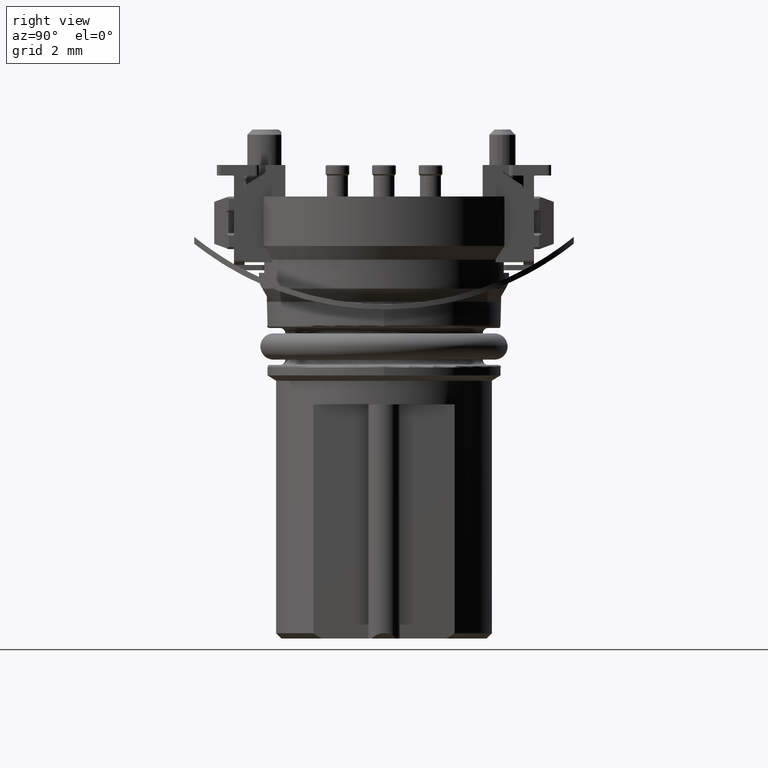
[diagram: clean part render]
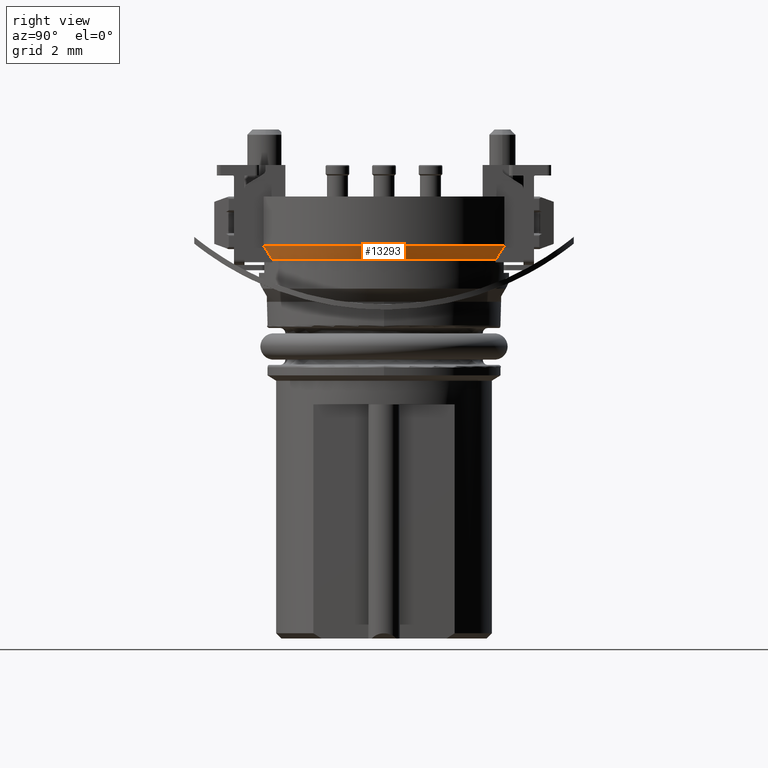
[diagram: same view with one face highlighted and labeled with its STEP entity id]
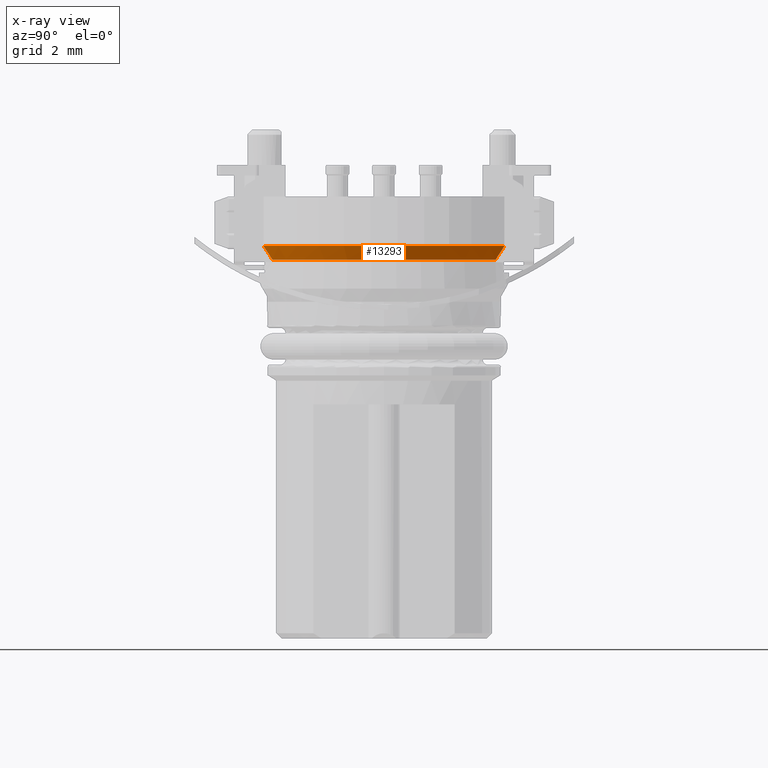
[diagram: x-ray of the same camera — body ghosted, the highlighted face saturated]
A machine part, right view. The second image highlights one B-rep face of the part: STEP entity #13293.
The next image is the same camera in x-ray: the body ghosted, the highlighted face saturated — about 0% of this face is hidden behind the body in this view.
In plain terms, the highlighted conical surface has half-angle 30 deg.
Its self-contained STEP definition (entity closure, byte-faithful):
#351=CARTESIAN_POINT('',(2.25E0,-4.576843890718E0,-3.080384757729E0));
#352=CARTESIAN_POINT('',(2.25E0,-4.538403500501E0,-3.140135642209E0));
#353=CARTESIAN_POINT('',(2.25E0,-4.462198632743E0,-3.258293690259E0));
#354=CARTESIAN_POINT('',(2.25E0,-4.349939330021E0,-3.431461919366E0));
#355=CARTESIAN_POINT('',(2.25E0,-4.276416809195E0,-3.544265188124E0));
#356=CARTESIAN_POINT('',(2.25E0,-4.239988207531E0,-3.6E0));
#402=CARTESIAN_POINT('',(2.25E0,4.239988207531E0,-3.6E0));
#403=CARTESIAN_POINT('',(2.25E0,4.276405623897E0,-3.544282301337E0));
#404=CARTESIAN_POINT('',(2.25E0,4.349913309737E0,-3.431501920412E0));
#405=CARTESIAN_POINT('',(2.25E0,4.462172006315E0,-3.258334901385E0));
#406=CARTESIAN_POINT('',(2.25E0,4.538392119917E0,-3.140153331936E0));
#407=CARTESIAN_POINT('',(2.25E0,4.576843890718E0,-3.080384757729E0));
#2244=CARTESIAN_POINT('',(0.E0,0.E0,-3.6E0));
#2245=DIRECTION('',(0.E0,0.E0,-1.E0));
#2246=DIRECTION('',(4.6875E-1,8.833308765689E-1,0.E0));
#2247=AXIS2_PLACEMENT_3D('',#2244,#2245,#2246);
#2320=CARTESIAN_POINT('',(0.E0,0.E0,-3.080384757729E0));
#2321=DIRECTION('',(0.E0,0.E0,1.E0));
#2322=DIRECTION('',(4.411764705882E-1,-8.974203707290E-1,0.E0));
#2323=AXIS2_PLACEMENT_3D('',#2320,#2321,#2322);
#9961=CARTESIAN_POINT('',(2.25E0,-4.576843890718E0,-3.080384757729E0));
#9963=VERTEX_POINT('',#9961);
#9965=VERTEX_POINT('',#356);
#9966=CARTESIAN_POINT('',(2.25E0,4.576843890718E0,-3.080384757729E0));
#9968=VERTEX_POINT('',#9966);
#9970=VERTEX_POINT('',#402);
#13282=CARTESIAN_POINT('',(0.E0,0.E0,-3.340192378865E0));
#13283=DIRECTION('',(0.E0,0.E0,1.E0));
#13284=DIRECTION('',(-4.226182617407E-1,9.063077870367E-1,0.E0));
#13285=AXIS2_PLACEMENT_3D('',#13282,#13283,#13284);
#13286=CONICAL_SURFACE('',#13285,4.95E0,3.E1);
#13287=ORIENTED_EDGE('',*,*,#11468,.F.);
#13288=ORIENTED_EDGE('',*,*,#11504,.T.);
#13289=ORIENTED_EDGE('',*,*,#11524,.F.);
#13290=ORIENTED_EDGE('',*,*,#13254,.T.);
#13291=EDGE_LOOP('',(#13287,#13288,#13289,#13290));
#13292=FACE_OUTER_BOUND('',#13291,.F.);
#357=B_SPLINE_CURVE_WITH_KNOTS('',3,(#351,#352,#353,#354,#355,#356),
.UNSPECIFIED.,.F.,.F.,(4,1,1,4),(0.E0,3.333333333333E-1,6.666666666667E-1,1.E0),
.UNSPECIFIED.);
#408=B_SPLINE_CURVE_WITH_KNOTS('',3,(#402,#403,#404,#405,#406,#407),
.UNSPECIFIED.,.F.,.F.,(4,1,1,4),(0.E0,3.333333333333E-1,6.666666666667E-1,1.E0),
.UNSPECIFIED.);
#2248=CIRCLE('',#2247,4.8E0);
#2324=CIRCLE('',#2323,5.1E0);
#11468=EDGE_CURVE('',#9963,#9965,#357,.T.);
#11504=EDGE_CURVE('',#9963,#9968,#2324,.T.);
#11524=EDGE_CURVE('',#9970,#9968,#408,.T.);
#13254=EDGE_CURVE('',#9970,#9965,#2248,.T.);
#13293=ADVANCED_FACE('',(#13292),#13286,.T.);